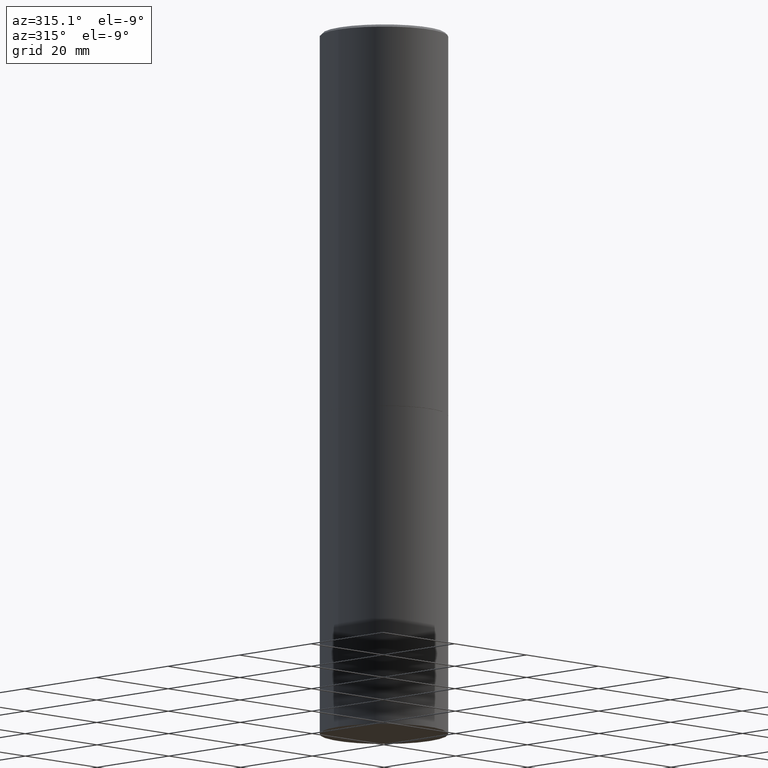
[diagram: clean part render]
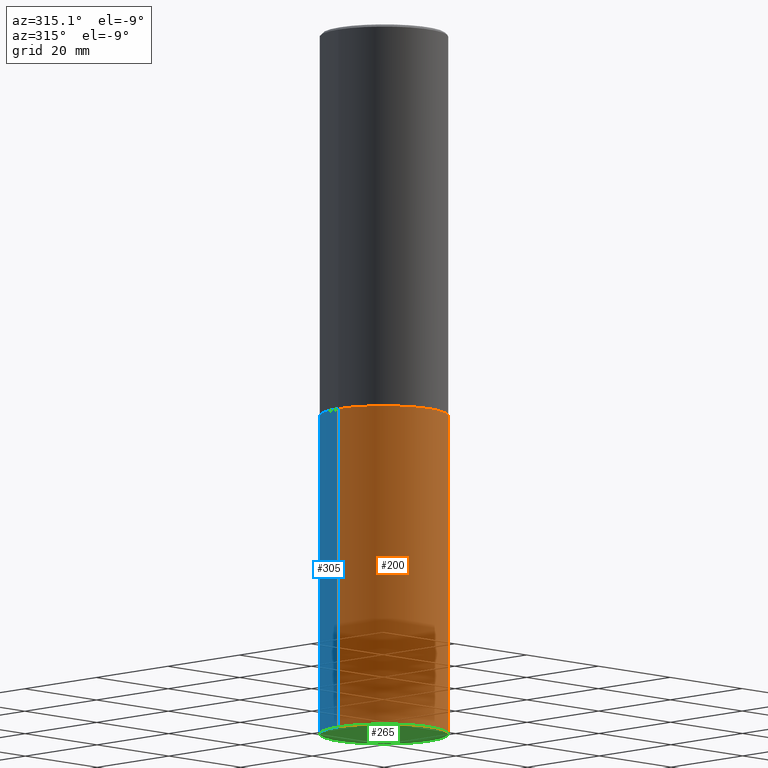
[diagram: same view with three faces highlighted in distinct colors, each labeled with its STEP entity id]
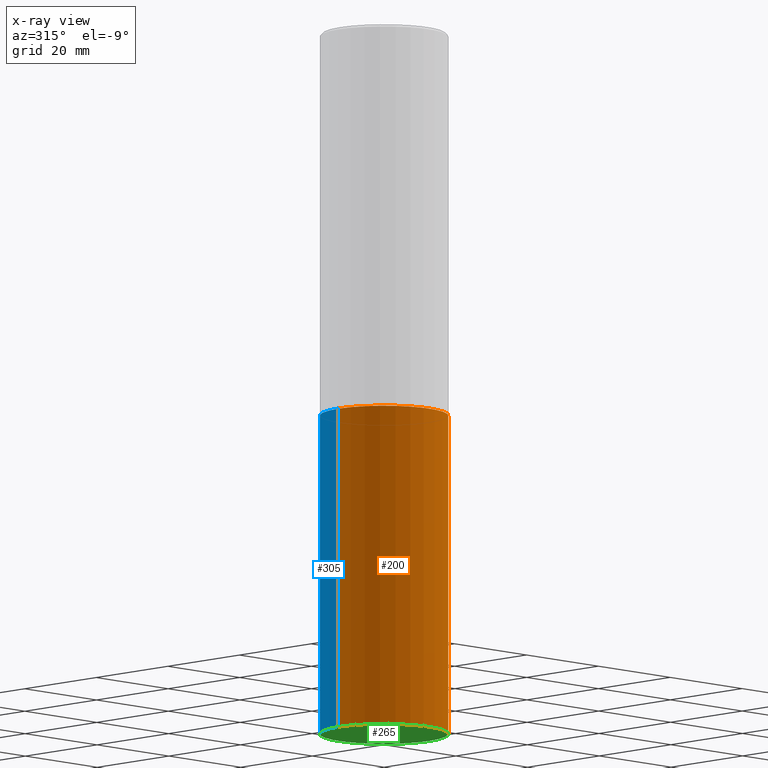
[diagram: x-ray of the same camera — body ghosted, the three highlighted faces saturated]
A machine part, auxiliary view with three faces highlighted in distinct colors.
The next image is the same camera in x-ray (body ghosted, the three faces saturated) — at least one of them is partly hidden behind the body in this view.
Their STEP definitions:

[orange] entity #200 — the highlighted cylindrical surface (partial cylindrical patch) has radius 12.7 mm, axis along (-0, 0, 1).
#3 = DIRECTION ( 'NONE',  ( -2.445468806185136877E-29, 3.491481338843145188E-15, 1.000000000000000000 ) ) ;
#8 = CARTESIAN_POINT ( 'NONE',  ( 0.000000000000000000, 0.000000000000000000, 0.000000000000000000 ) ) ;
#49 = EDGE_CURVE ( 'NONE', #117, #76, #81, .T. ) ;
#53 = AXIS2_PLACEMENT_3D ( 'NONE', #324, #239, #181 ) ;
#59 = CARTESIAN_POINT ( 'NONE',  ( -0.5000000000000000000, 3.552713678800500929E-15, -2.459467545127452891E-29 ) ) ;
#66 = DIRECTION ( 'NONE',  ( 1.000000000000000000, -6.982962677686266711E-15, 4.876176775795935793E-29 ) ) ;
#76 = VERTEX_POINT ( 'NONE', #175 ) ;
#81 = LINE ( 'NONE', #59, #172 ) ;
#93 = CARTESIAN_POINT ( 'NONE',  ( 0.5000000000000000000, -3.491481338843133355E-15, 2.438088387897967896E-29 ) ) ;
#98 = CARTESIAN_POINT ( 'NONE',  ( 0.5000000000000000000, -1.396592535537256813E-14, -2.999999999999999556 ) ) ;
#116 = VERTEX_POINT ( 'NONE', #165 ) ;
#117 = VERTEX_POINT ( 'NONE', #276 ) ;
#127 = ORIENTED_EDGE ( 'NONE', *, *, #329, .F. ) ;
#151 = DIRECTION ( 'NONE',  ( -2.445468806185136597E-29, 3.491481338843145583E-15, 1.000000000000000000 ) ) ;
#160 = EDGE_CURVE ( 'NONE', #116, #197, #261, .T. ) ;
#164 = DIRECTION ( 'NONE',  ( -2.445468806185136877E-29, 3.491481338843145188E-15, 1.000000000000000000 ) ) ;
#165 = CARTESIAN_POINT ( 'NONE',  ( 0.5000000000000000000, -2.269462870248043307E-14, -5.500000000000000000 ) ) ;
#171 = CYLINDRICAL_SURFACE ( 'NONE', #257, 0.5000000000000000000 ) ;
#172 = VECTOR ( 'NONE', #164, 39.37007874015748143 ) ;
#175 = CARTESIAN_POINT ( 'NONE',  ( -0.5000000000000000000, -1.128608201128286632E-14, -2.999999999999999556 ) ) ;
#181 = DIRECTION ( 'NONE',  ( 1.000000000000000000, -6.982962677686262766E-15, 0.000000000000000000 ) ) ;
#187 = DIRECTION ( 'NONE',  ( 1.000000000000000000, -6.982962677686266711E-15, 0.000000000000000000 ) ) ;
#197 = VERTEX_POINT ( 'NONE', #98 ) ;
#198 = AXIS2_PLACEMENT_3D ( 'NONE', #244, #321, #187 ) ;
#200 = ADVANCED_FACE ( 'NONE', ( #309 ), #171, .T. ) ;
#210 = EDGE_LOOP ( 'NONE', ( #316, #335, #243, #127 ) ) ;
#239 = DIRECTION ( 'NONE',  ( -2.445468806185136597E-29, 3.491481338843145583E-15, 1.000000000000000000 ) ) ;
#243 = ORIENTED_EDGE ( 'NONE', *, *, #160, .T. ) ;
#244 = CARTESIAN_POINT ( 'NONE',  ( 7.336406418555408669E-29, -1.047444401652943478E-14, -2.999999999999999556 ) ) ;
#257 = AXIS2_PLACEMENT_3D ( 'NONE', #8, #151, #66 ) ;
#261 = LINE ( 'NONE', #93, #328 ) ;
#266 = CIRCLE ( 'NONE', #198, 0.5000000000000000000 ) ;
#276 = CARTESIAN_POINT ( 'NONE',  ( -0.5000000000000000000, -1.128608201128286632E-14, -5.500000000000000000 ) ) ;
#307 = CIRCLE ( 'NONE', #53, 0.5000000000000000000 ) ;
#309 = FACE_OUTER_BOUND ( 'NONE', #210, .T. ) ;
#316 = ORIENTED_EDGE ( 'NONE', *, *, #49, .F. ) ;
#321 = DIRECTION ( 'NONE',  ( -2.445468806185136597E-29, 3.491481338843145583E-15, 1.000000000000000000 ) ) ;
#324 = CARTESIAN_POINT ( 'NONE',  ( 1.345007843401824904E-28, -1.920314736363729972E-14, -5.500000000000000000 ) ) ;
#328 = VECTOR ( 'NONE', #3, 39.37007874015748143 ) ;
#329 = EDGE_CURVE ( 'NONE', #76, #197, #266, .T. ) ;
#335 = ORIENTED_EDGE ( 'NONE', *, *, #338, .T. ) ;
#338 = EDGE_CURVE ( 'NONE', #117, #116, #307, .T. ) ;

[blue] entity #305 — the highlighted cylindrical surface (partial cylindrical patch) has radius 12.7 mm, axis along (-0, 0, 1).
#3 = DIRECTION ( 'NONE',  ( -2.445468806185136877E-29, 3.491481338843145188E-15, 1.000000000000000000 ) ) ;
#15 = CARTESIAN_POINT ( 'NONE',  ( 1.345007843401824904E-28, -1.920314736363729972E-14, -5.500000000000000000 ) ) ;
#18 = FACE_OUTER_BOUND ( 'NONE', #89, .T. ) ;
#49 = EDGE_CURVE ( 'NONE', #117, #76, #81, .T. ) ;
#50 = CYLINDRICAL_SURFACE ( 'NONE', #184, 0.5000000000000000000 ) ;
#59 = CARTESIAN_POINT ( 'NONE',  ( -0.5000000000000000000, 3.552713678800500929E-15, -2.459467545127452891E-29 ) ) ;
#76 = VERTEX_POINT ( 'NONE', #175 ) ;
#78 = EDGE_CURVE ( 'NONE', #197, #76, #128, .T. ) ;
#81 = LINE ( 'NONE', #59, #172 ) ;
#89 = EDGE_LOOP ( 'NONE', ( #273, #240, #133, #217 ) ) ;
#93 = CARTESIAN_POINT ( 'NONE',  ( 0.5000000000000000000, -3.491481338843133355E-15, 2.438088387897967896E-29 ) ) ;
#98 = CARTESIAN_POINT ( 'NONE',  ( 0.5000000000000000000, -1.396592535537256813E-14, -2.999999999999999556 ) ) ;
#106 = DIRECTION ( 'NONE',  ( 1.000000000000000000, -6.982962677686262766E-15, 0.000000000000000000 ) ) ;
#116 = VERTEX_POINT ( 'NONE', #165 ) ;
#117 = VERTEX_POINT ( 'NONE', #276 ) ;
#128 = CIRCLE ( 'NONE', #228, 0.5000000000000000000 ) ;
#133 = ORIENTED_EDGE ( 'NONE', *, *, #78, .F. ) ;
#134 = DIRECTION ( 'NONE',  ( -2.445468806185136597E-29, 3.491481338843145583E-15, 1.000000000000000000 ) ) ;
#142 = DIRECTION ( 'NONE',  ( -2.445468806185136597E-29, 3.491481338843145583E-15, 1.000000000000000000 ) ) ;
#157 = DIRECTION ( 'NONE',  ( -2.445468806185136597E-29, 3.491481338843145583E-15, 1.000000000000000000 ) ) ;
#160 = EDGE_CURVE ( 'NONE', #116, #197, #261, .T. ) ;
#164 = DIRECTION ( 'NONE',  ( -2.445468806185136877E-29, 3.491481338843145188E-15, 1.000000000000000000 ) ) ;
#165 = CARTESIAN_POINT ( 'NONE',  ( 0.5000000000000000000, -2.269462870248043307E-14, -5.500000000000000000 ) ) ;
#172 = VECTOR ( 'NONE', #164, 39.37007874015748143 ) ;
#175 = CARTESIAN_POINT ( 'NONE',  ( -0.5000000000000000000, -1.128608201128286632E-14, -2.999999999999999556 ) ) ;
#184 = AXIS2_PLACEMENT_3D ( 'NONE', #290, #157, #267 ) ;
#197 = VERTEX_POINT ( 'NONE', #98 ) ;
#217 = ORIENTED_EDGE ( 'NONE', *, *, #160, .F. ) ;
#222 = CIRCLE ( 'NONE', #227, 0.5000000000000000000 ) ;
#227 = AXIS2_PLACEMENT_3D ( 'NONE', #15, #134, #106 ) ;
#228 = AXIS2_PLACEMENT_3D ( 'NONE', #302, #142, #253 ) ;
#240 = ORIENTED_EDGE ( 'NONE', *, *, #49, .T. ) ;
#253 = DIRECTION ( 'NONE',  ( 1.000000000000000000, -6.982962677686266711E-15, 0.000000000000000000 ) ) ;
#261 = LINE ( 'NONE', #93, #328 ) ;
#267 = DIRECTION ( 'NONE',  ( 1.000000000000000000, -6.982962677686266711E-15, 4.876176775795935793E-29 ) ) ;
#273 = ORIENTED_EDGE ( 'NONE', *, *, #306, .T. ) ;
#276 = CARTESIAN_POINT ( 'NONE',  ( -0.5000000000000000000, -1.128608201128286632E-14, -5.500000000000000000 ) ) ;
#290 = CARTESIAN_POINT ( 'NONE',  ( 0.000000000000000000, 0.000000000000000000, 0.000000000000000000 ) ) ;
#302 = CARTESIAN_POINT ( 'NONE',  ( 7.336406418555408669E-29, -1.047444401652943478E-14, -2.999999999999999556 ) ) ;
#305 = ADVANCED_FACE ( 'NONE', ( #18 ), #50, .T. ) ;
#306 = EDGE_CURVE ( 'NONE', #116, #117, #222, .T. ) ;
#328 = VECTOR ( 'NONE', #3, 39.37007874015748143 ) ;

[green] entity #265 — the highlighted planar face has unit normal (0, -0, -1).
#15 = CARTESIAN_POINT ( 'NONE',  ( 1.345007843401824904E-28, -1.920314736363729972E-14, -5.500000000000000000 ) ) ;
#23 = ORIENTED_EDGE ( 'NONE', *, *, #338, .F. ) ;
#53 = AXIS2_PLACEMENT_3D ( 'NONE', #324, #239, #181 ) ;
#106 = DIRECTION ( 'NONE',  ( 1.000000000000000000, -6.982962677686262766E-15, 0.000000000000000000 ) ) ;
#116 = VERTEX_POINT ( 'NONE', #165 ) ;
#117 = VERTEX_POINT ( 'NONE', #276 ) ;
#134 = DIRECTION ( 'NONE',  ( -2.445468806185136597E-29, 3.491481338843145583E-15, 1.000000000000000000 ) ) ;
#135 = AXIS2_PLACEMENT_3D ( 'NONE', #212, #288, #238 ) ;
#165 = CARTESIAN_POINT ( 'NONE',  ( 0.5000000000000000000, -2.269462870248043307E-14, -5.500000000000000000 ) ) ;
#181 = DIRECTION ( 'NONE',  ( 1.000000000000000000, -6.982962677686262766E-15, 0.000000000000000000 ) ) ;
#212 = CARTESIAN_POINT ( 'NONE',  ( 3.491481338843267462E-15, 0.4999999999999807931, -5.500000000000001776 ) ) ;
#215 = ORIENTED_EDGE ( 'NONE', *, *, #306, .F. ) ;
#222 = CIRCLE ( 'NONE', #227, 0.5000000000000000000 ) ;
#227 = AXIS2_PLACEMENT_3D ( 'NONE', #15, #134, #106 ) ;
#238 = DIRECTION ( 'NONE',  ( -1.000000000000000000, 6.982962677686265922E-15, -4.876176775795935793E-29 ) ) ;
#239 = DIRECTION ( 'NONE',  ( -2.445468806185136597E-29, 3.491481338843145583E-15, 1.000000000000000000 ) ) ;
#241 = FACE_OUTER_BOUND ( 'NONE', #293, .T. ) ;
#265 = ADVANCED_FACE ( 'NONE', ( #241 ), #287, .T. ) ;
#276 = CARTESIAN_POINT ( 'NONE',  ( -0.5000000000000000000, -1.128608201128286632E-14, -5.500000000000000000 ) ) ;
#287 = PLANE ( 'NONE',  #135 ) ;
#288 = DIRECTION ( 'NONE',  ( 2.438088387897960049E-29, -3.491481338843145188E-15, -1.000000000000000000 ) ) ;
#293 = EDGE_LOOP ( 'NONE', ( #215, #23 ) ) ;
#306 = EDGE_CURVE ( 'NONE', #116, #117, #222, .T. ) ;
#307 = CIRCLE ( 'NONE', #53, 0.5000000000000000000 ) ;
#324 = CARTESIAN_POINT ( 'NONE',  ( 1.345007843401824904E-28, -1.920314736363729972E-14, -5.500000000000000000 ) ) ;
#338 = EDGE_CURVE ( 'NONE', #117, #116, #307, .T. ) ;